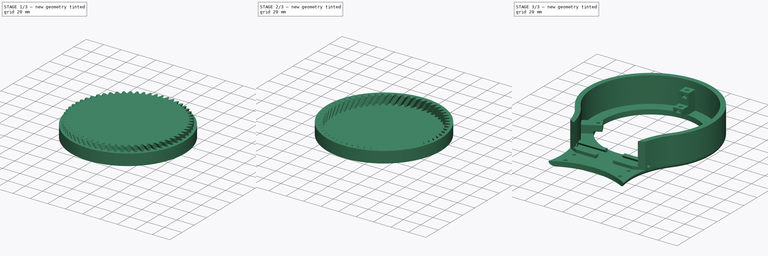
[diagram: build sequence overview — one tinted view per stage of 3, left to right]
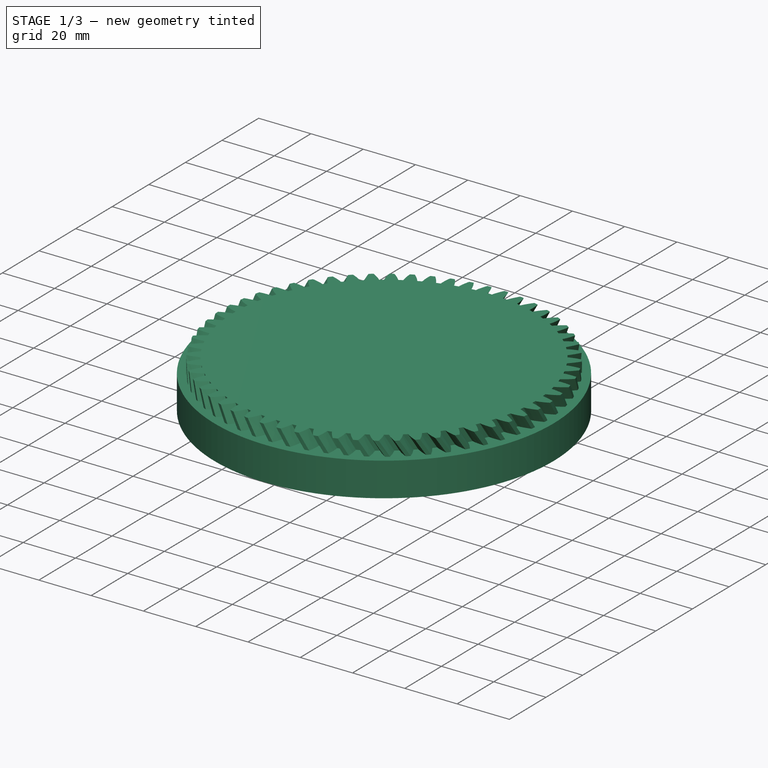
[diagram: stage 1 of 3 — iso view after this stage's code; geometry added in this stage tinted green]
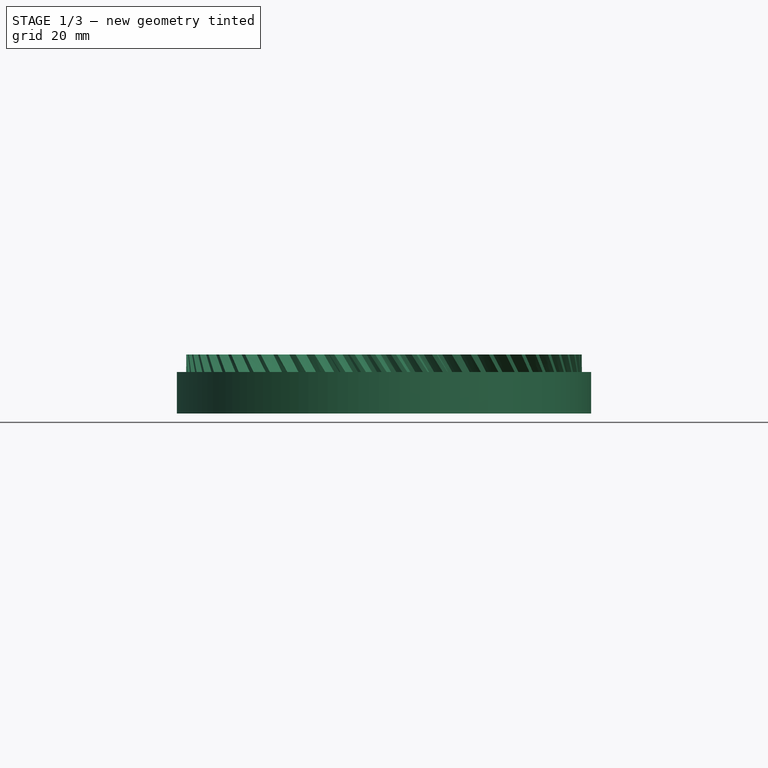
[diagram: stage 1 of 3 — front view after this stage's code; geometry added in this stage tinted green]
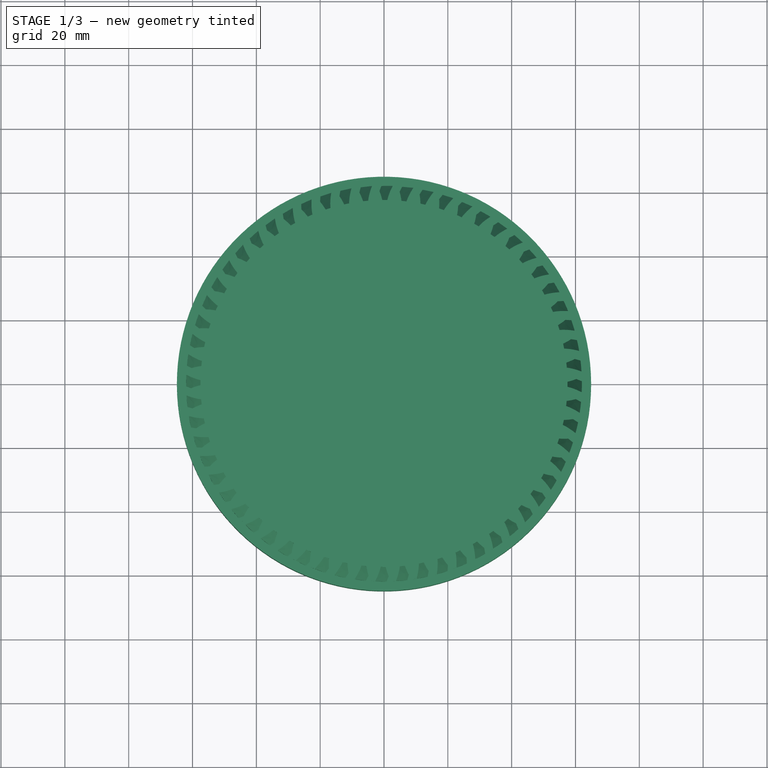
[diagram: stage 1 of 3 — top view after this stage's code; geometry added in this stage tinted green]
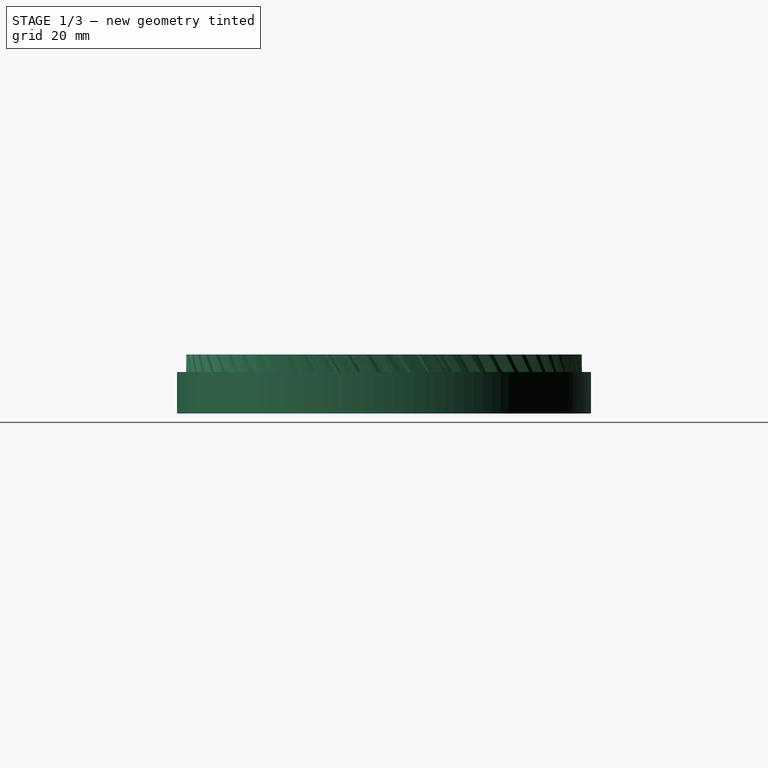
[diagram: stage 1 of 3 — right view after this stage's code; geometry added in this stage tinted green]
FCSTD DOCUMENT  (FreeCAD 0.19R24276 (Git))
Label: Art2BodyA_Splitted_B
License: All rights reserved
LicenseURL: http://en.wikipedia.org/wiki/All_rights_reserved
objects: Sketcher::SketchObject×24, PartDesign::Pocket×17, PartDesign::Pad×7, PartDesign::Plane×4, PartDesign::Body×2, Spreadsheet::Sheet×1, Part::FeaturePython×1, Part::Cylinder×1, Part::Cut×1, Part::MultiFuse×1, PartDesign::FeatureBase×1, PartDesign::Chamfer×1, PartDesign::Mirrored×1, PartDesign::Line×1, PartDesign::PolarPattern×1, PartDesign::Fillet×1
note: 90 computed .brp shape members not serialized (recipe doc carries the construction recipe); baked Part::Feature solids carry a one-line shape summary decoded from their .brp

FEATURE [Sketcher::SketchObject] Sketch001
  ExternalGeometry = -> [Pad]
  FullyConstrained = true
  MapMode = 5
  Placement = pos=(0,0,32) rot=(0,0,1;0rad)
  Support = -> [Pad]
  sketch-geometry (4):
    g0: ArcOfCircle CenterX=0 CenterY=0 CenterZ=0 NormalX=0 NormalY=0 NormalZ=1 AngleXU=0 Radius=60 StartAngle=2.47872 EndAngle=6.94606
    g1: ArcOfCircle CenterX=102.47 CenterY=80 CenterZ=0 NormalX=0 NormalY=0 NormalZ=1 AngleXU=0 Radius=70 StartAngle=2.47872 EndAngle=3.80447
    g2: ArcOfCircle CenterX=-102.47 CenterY=80 CenterZ=0 NormalX=0 NormalY=0 NormalZ=1 AngleXU=0 Radius=70 StartAngle=5.62031 EndAngle=6.94606
    g3: ArcOfCircle CenterX=2.7e-15 CenterY=160 CenterZ=0 NormalX=0 NormalY=0 NormalZ=1 AngleXU=0 Radius=60 StartAngle=5.62031 EndAngle=10.0877
  constraints (9):
    c: Coincident(g0,g-1)
    c: Coincident(g1,g-4)
    c: Coincident(g2,g-5)
    c: Coincident(g2,g0)
    c: Coincident(g3,g-3)
    c: Tangent(g3,g2) = 1.5708
    c: Radius(g3) = 60
    c: Tangent(g3,g1) = 1.5708
    c: Tangent(g1,g0) = 1.5708
FEATURE [PartDesign::Pocket] Pocket
  BaseFeature = -> Pad
  Length = 27
  Length2 = 100
  Profile = -> Sketch001
  Refine = true
  Type = 0
FEATURE [Part::FeaturePython] involutegear  # WARN: FeaturePython — macro-defined, semantics opaque (R4)
  Placement = pos=(0,0,3) rot=(0,0,1;0rad)
  backlash = 0
  beta = -32
  clearance = 0.25
  double_helix = false
  dw = 120
  head = 0
  height = 15.5
  module = 2
  numpoints = 6
  pressure_angle = 20
  properties_from_tool = false
  reversed_backlash = false
  shift = 0
  simple = false
  teeth = 60
  transverse_pitch = 6.28319
  undercut = false
  version = 0.0.3
FEATURE [Sketcher::SketchObject] Sketch003
  FullyConstrained = true
  MapMode = 5
  Placement = pos=(0,0,3) rot=(0,0,1;0rad)
  sketch-geometry (1):
    g0: Circle CenterX=0 CenterY=0 CenterZ=0 NormalX=0 NormalY=0 NormalZ=1 AngleXU=0 Radius=18
  constraints (2):
    c: Coincident(g0,g-1)
    c: Radius(g0) = 18
FEATURE [PartDesign::Plane] DatumPlane
  AttachmentOffset = pos=(0,0,9) rot=(0,0,1;0rad)
  Length = 273.743
  MapMode = 5
  Placement = pos=(9,-2e-15,2e-15) rot=(0.57735,0.57735,0.57735;2.0944rad)
  ResizeMode = 0
  Support = -> [YZ_Plane001]
  Width = 80.8687
FEATURE [Part::Cylinder] Cylinder
  Angle = 360
  AttacherType = Attacher::AttachEngine3D
  Height = 13
  Radius = 64.9
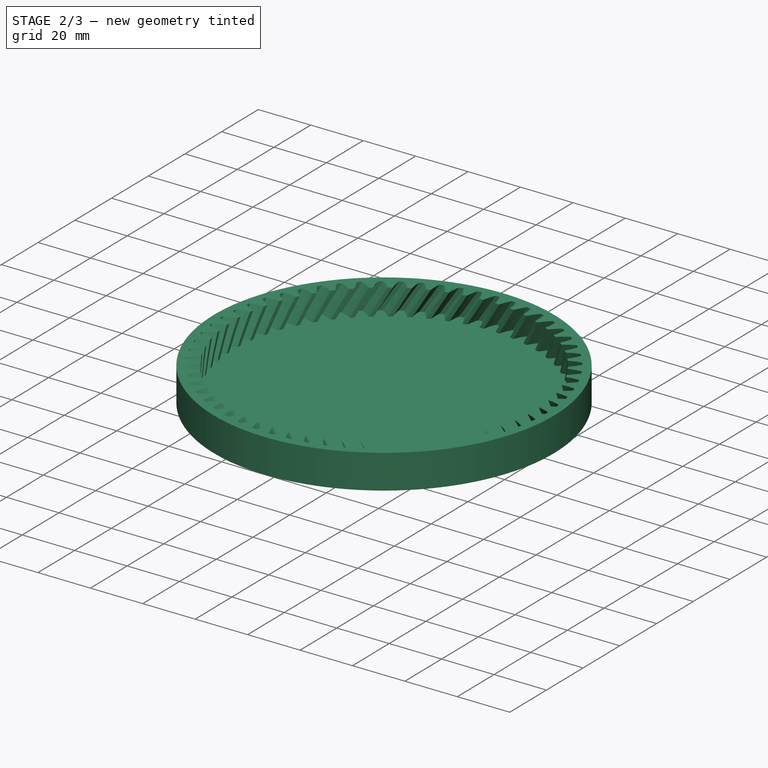
[diagram: stage 2 of 3 — iso view after this stage's code; geometry added in this stage tinted green]
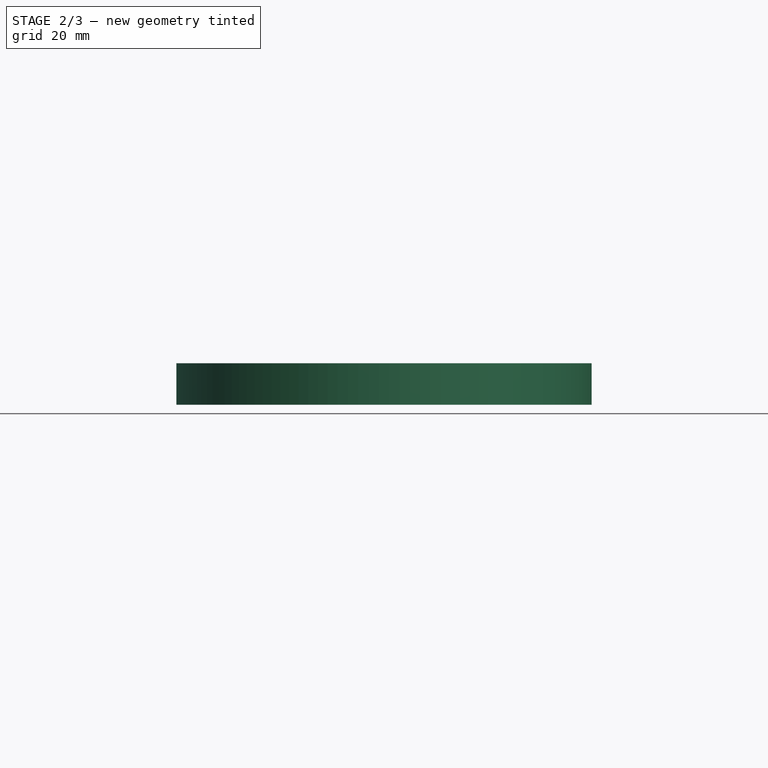
[diagram: stage 2 of 3 — front view after this stage's code; geometry added in this stage tinted green]
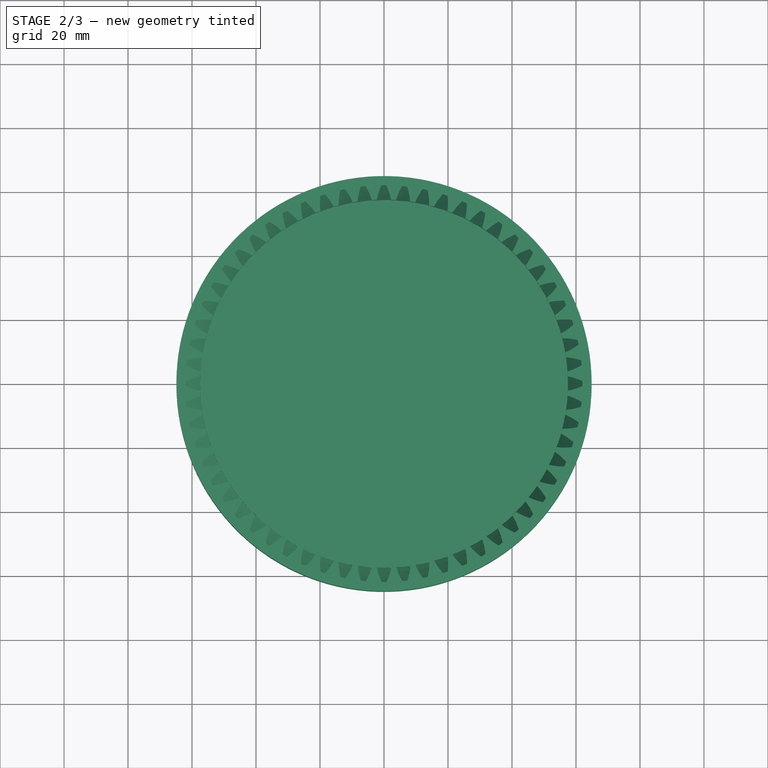
[diagram: stage 2 of 3 — top view after this stage's code; geometry added in this stage tinted green]
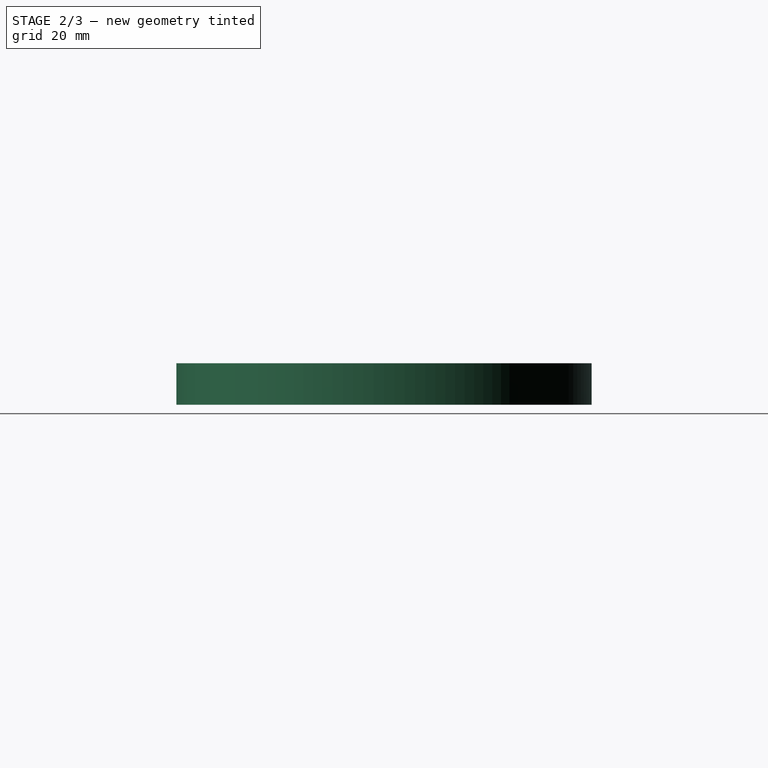
[diagram: stage 2 of 3 — right view after this stage's code; geometry added in this stage tinted green]
FEATURE [Sketcher::SketchObject] Sketch021
  FullyConstrained = true
  MapMode = 5
  Placement = pos=(0,0,32) rot=(0,0,1;0rad)
  Support = -> [Pocket]
  sketch-geometry (1):
    g0: Circle CenterX=0 CenterY=0 CenterZ=0 NormalX=0 NormalY=0 NormalZ=1 AngleXU=0 Radius=62.5
  constraints (2):
    c: Coincident(g0,g-1)
    c: Radius(g0) = 62.5
FEATURE [PartDesign::Pocket] Pocket014
  BaseFeature = -> Pocket
  Length = 29
  Length2 = 100
  Profile = -> Sketch021
  Refine = true
  Type = 0
FEATURE [PartDesign::Body] Body
  Group = -> [Sketch,Pad,Sketch001,Pocket,Sketch021,Pocket014]
  Origin = -> Origin
  Tip = -> Pocket014
FEATURE [PartDesign::Plane] DatumPlane003
  AttachmentOffset = pos=(0,0,-80) rot=(0,0,1;0rad)
  Length = 147.03
  MapMode = 5
  Placement = pos=(0,80,1.78e-14) rot=(1,0,0;1.5708rad)
  ResizeMode = 0
  Support = -> [XZ_Plane001]
  Width = 74.2047
FEATURE [Part::Cut] Cut
  Base = -> Cylinder
  Refine = true
  Tool = -> involutegear
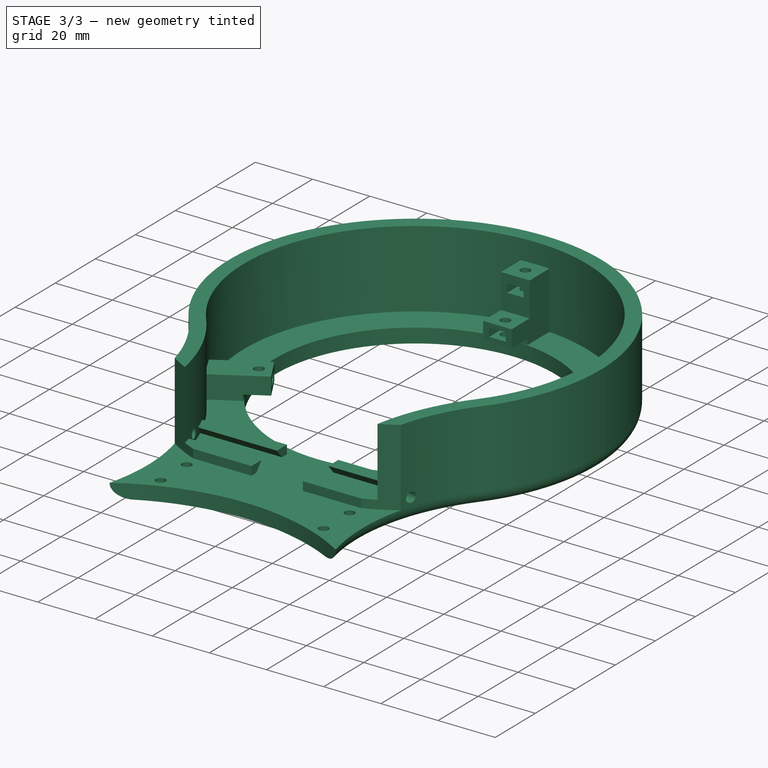
[diagram: stage 3 of 3 — iso view after this stage's code; geometry added in this stage tinted green]
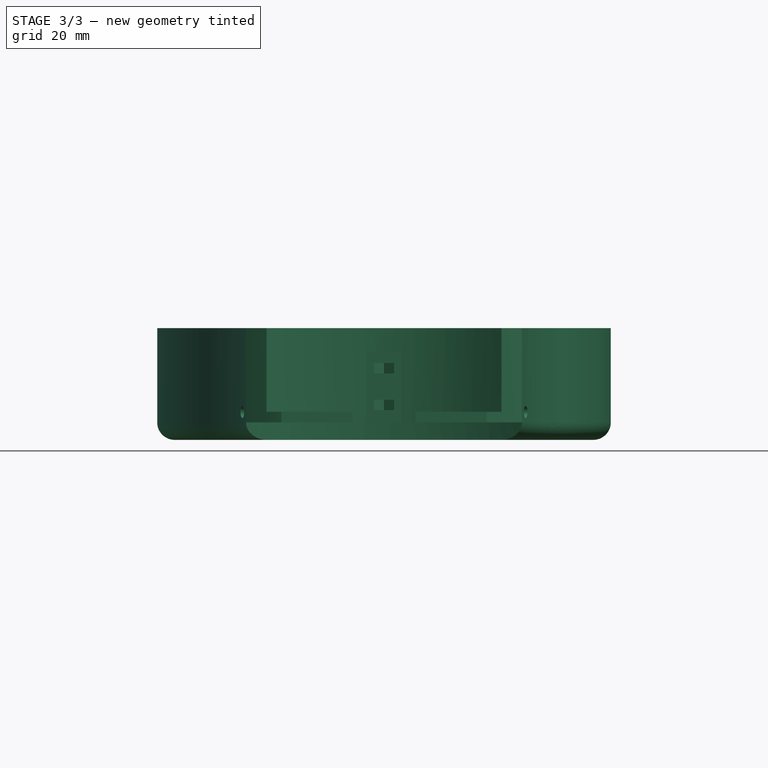
[diagram: stage 3 of 3 — front view after this stage's code; geometry added in this stage tinted green]
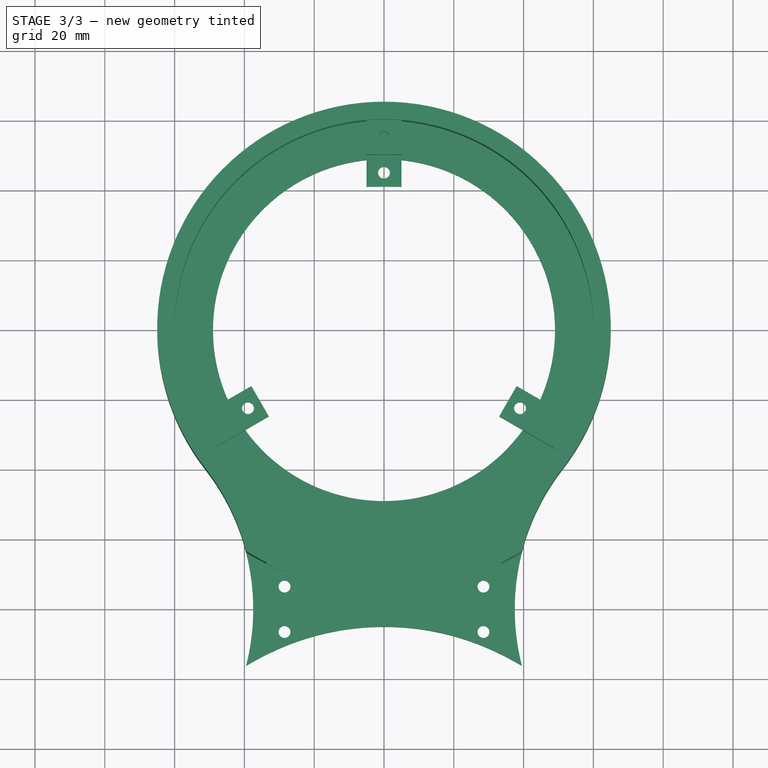
[diagram: stage 3 of 3 — top view after this stage's code; geometry added in this stage tinted green]
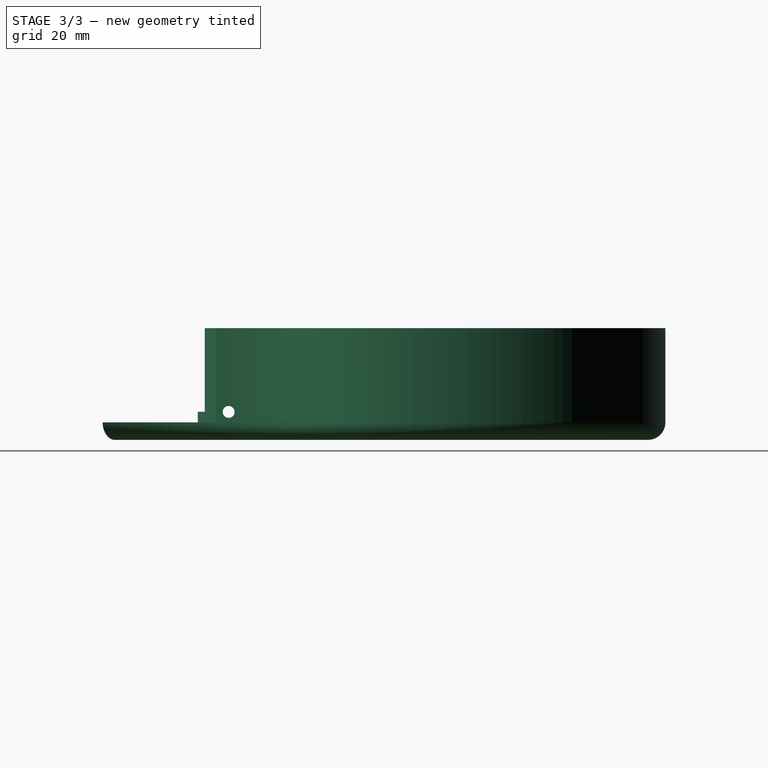
[diagram: stage 3 of 3 — right view after this stage's code; geometry added in this stage tinted green]
FEATURE [Spreadsheet::Sheet] Spreadsheet
  cells = A2=M3BoltBodyRadius; B2(M3BoltBodyRadius)=1.7; A3=M3BoltHeadRadius; B3(M3BoltHeadRadius)=2.95; A4=M3NutCircumradius; B4(M3NutCircumradius)=3.35; A5=M3NutThickness; B5(M3NutThickness)=3; A6=Bearing655ZZBodyRadius; B6(Bearing655ZZBodyRadius)=8.199999999999999; A7=MagnetRadius; B7(MagnetRadius)=4.2; A8=MagnetThickness; B8(MagnetThickness)=1.1
FEATURE [Sketcher::SketchObject] Sketch
  FullyConstrained = true
  MapMode = 5
  Support = -> [XY_Plane]
  sketch-geometry (4):
    g0: ArcOfCircle CenterX=0 CenterY=0 CenterZ=0 NormalX=0 NormalY=0 NormalZ=1 AngleXU=0 Radius=65 StartAngle=2.47872 EndAngle=6.94606
    g1: ArcOfCircle CenterX=102.47 CenterY=80 CenterZ=0 NormalX=0 NormalY=0 NormalZ=1 AngleXU=0 Radius=65 StartAngle=2.47872 EndAngle=3.80447
    g2: ArcOfCircle CenterX=-102.47 CenterY=80 CenterZ=0 NormalX=0 NormalY=0 NormalZ=1 AngleXU=0 Radius=65 StartAngle=5.62031 EndAngle=6.94606
    g3: ArcOfCircle CenterX=2.8e-15 CenterY=160 CenterZ=0 NormalX=0 NormalY=0 NormalZ=1 AngleXU=0 Radius=65 StartAngle=5.62031 EndAngle=10.0877
  constraints (10):
    c: Coincident(g0,g-1)
    c: Tangent(g2,g0) = 1.5708
    c: Tangent(g1,g0) = 1.5708
    c: Symmetric(g1,g2,g-2)
    c: Tangent(g3,g1) = 1.5708
    c: Tangent(g3,g2) = 1.5708
    c: Equal(g3,g0)
    c: DistanceY(g0,g3) = 160
    c: Radius(g0) = 65
    c: Equal(g2,g0)
FEATURE [PartDesign::Pad] Pad
  Direction = (1,1,1)
  Length = 32
  Length2 = 100
  Profile = -> Sketch
  Refine = true
  Type = 0
FEATURE [Part::MultiFuse] Fusion
  Refine = true
  Shapes = -> [Cut,Pocket014]
FEATURE [PartDesign::FeatureBase] BaseFeature  label="Fusion001"
  BaseFeature = -> Fusion
FEATURE [PartDesign::Pad] Pad002
  BaseFeature = -> BaseFeature
  Direction = (1,1,1)
  Length = 8
  Length2 = 100
  Profile = -> Sketch003
  Refine = true
  Type = 0
FEATURE [PartDesign::Chamfer] Chamfer
  Angle = 45
  Base = -> Pad002 [Edge755]
  BaseFeature = -> Pad002
  ChamferType = 0
  FlipDirection = false
  Refine = true
  Size = 6
  Size2 = 1
  SupportTransform = false
FEATURE [Sketcher::SketchObject] Sketch004
  FullyConstrained = true
  MapMode = 5
  Placement = pos=(0,0,11) rot=(0,0,1;0rad)
  Support = -> [Chamfer]
  expr: Constraints[5] = Spreadsheet.M3BoltBodyRadius
  sketch-geometry (3):
    g0: Circle CenterX=0 CenterY=0 CenterZ=0 NormalX=0 NormalY=0 NormalZ=1 AngleXU=0 Radius=5
    g1: Circle CenterX=11 CenterY=0 CenterZ=0 NormalX=0 NormalY=0 NormalZ=1 AngleXU=0 Radius=1.7
    g2: Circle CenterX=-11 CenterY=0 CenterZ=0 NormalX=0 NormalY=0 NormalZ=1 AngleXU=0 Radius=1.7
  constraints (7):
    c: Coincident(g0,g-1)
    c: PointOnObject(g1,g-1)
    c: Symmetric(g2,g1,g-2)
    c: DistanceX(g2,g1) = 22
    c: Radius(g0) = 5
    c: Radius(g2) = 1.7
    c: Equal(g1,g2)
FEATURE [PartDesign::Pocket] Pocket001
  BaseFeature = -> Chamfer
  Length = 5
  Length2 = 100
  Profile = -> Sketch004
  Refine = true
  Type = 1
FEATURE [Sketcher::SketchObject] Sketch005
  FullyConstrained = true
  MapMode = 5
  Placement = pos=(0,0,0) rot=(1,0,0;3.14159rad)
  Support = -> [Pocket001]
  expr: Constraints[1] = Spreadsheet.Bearing655ZZBodyRadius
  sketch-geometry (1):
    g0: Circle CenterX=0 CenterY=0 CenterZ=0 NormalX=0 NormalY=0 NormalZ=1 AngleXU=0 Radius=8.2
  constraints (2):
    c: Coincident(g0,g-1)
    c: Radius(g0) = 8.2
FEATURE [PartDesign::Pocket] Pocket002
  BaseFeature = -> Pocket001
  Length = 9
  Length2 = 100
  Profile = -> Sketch005
  Refine = true
  Type = 0
FEATURE [Sketcher::SketchObject] Sketch006
  FullyConstrained = true
  MapMode = 5
  Placement = pos=(0,0,0) rot=(1,0,0;3.14159rad)
  Support = -> [Pocket002]
  sketch-geometry (4):
    g0: LineSegment StartX=-15.3 StartY=3.5 StartZ=0 EndX=15.3 EndY=3.5 EndZ=0
    g1: LineSegment StartX=15.3 StartY=3.5 StartZ=0 EndX=15.3 EndY=-3.5 EndZ=0
    g2: LineSegment StartX=15.3 StartY=-3.5 StartZ=0 EndX=-15.3 EndY=-3.5 EndZ=0
    g3: LineSegment StartX=-15.3 StartY=-3.5 StartZ=0 EndX=-15.3 EndY=3.5 EndZ=0
  constraints (10):
    c: Coincident(g0,g1)
    c: Coincident(g1,g2)
    c: Coincident(g2,g3)
    c: Coincident(g3,g0)
    c: Horizontal(g0)
    c: Vertical(g3)
    c: Symmetric(g0,g1,g-1)
    c: Symmetric(g2,g1,g-2)
    c: DistanceX(g2,g2) = 30.6
    c: DistanceY(g3,g3) = 7
FEATURE [PartDesign::Pocket] Pocket003
  BaseFeature = -> Pocket002
  Length = 4
  Length2 = 100
  Profile = -> Sketch006
  Refine = true
  Type = 0
FEATURE [Sketcher::SketchObject] Sketch007
  ExternalGeometry = -> [Pocket003]
  FullyConstrained = true
  MapMode = 5
  Placement = pos=(0,0,11) rot=(0,0,1;0rad)
  Support = -> [Pocket003]
  expr: Constraints[39] = Spreadsheet.M3NutCircumradius
  sketch-geometry (14):
    g0: LineSegment StartX=11 StartY=3.35 StartZ=0 EndX=8.09881 EndY=1.675 EndZ=0
    g1: LineSegment StartX=8.09881 StartY=1.675 StartZ=0 EndX=8.09881 EndY=-1.675 EndZ=0
    g2: LineSegment StartX=8.09881 StartY=-1.675 StartZ=0 EndX=11 EndY=-3.35 EndZ=0
    g3: LineSegment StartX=11 StartY=-3.35 StartZ=0 EndX=13.9012 EndY=-1.675 EndZ=0
    g4: LineSegment StartX=13.9012 StartY=-1.675 StartZ=0 EndX=13.9012 EndY=1.675 EndZ=0
    g5: LineSegment StartX=13.9012 StartY=1.675 StartZ=0 EndX=11 EndY=3.35 EndZ=0
    g6: Circle CenterX=11 CenterY=0 CenterZ=0 NormalX=0 NormalY=0 NormalZ=1 AngleXU=0 Radius=3.35
    g7: LineSegment StartX=-11 StartY=3.35 StartZ=0 EndX=-13.9012 EndY=1.675 EndZ=0
    g8: LineSegment StartX=-13.9012 StartY=1.675 StartZ=0 EndX=-13.9012 EndY=-1.675 EndZ=0
    g9: LineSegment StartX=-13.9012 StartY=-1.675 StartZ=0 EndX=-11 EndY=-3.35 EndZ=0
    g10: LineSegment StartX=-11 StartY=-3.35 StartZ=0 EndX=-8.09881 EndY=-1.675 EndZ=0
    g11: LineSegment StartX=-8.09881 StartY=-1.675 StartZ=0 EndX=-8.09881 EndY=1.675 EndZ=0
    g12: LineSegment StartX=-8.09881 StartY=1.675 StartZ=0 EndX=-11 EndY=3.35 EndZ=0
    g13: Circle CenterX=-11 CenterY=0 CenterZ=0 NormalX=0 NormalY=0 NormalZ=1 AngleXU=0 Radius=3.35
  constraints (32):
    c: Coincident(g0,g1)
    c: Coincident(g1,g2)
    c: Coincident(g2,g3)
    c: Coincident(g3,g4)
    c: Coincident(g4,g5)
    c: Coincident(g5,g0)
    c: Equal(g0, g1-g5) x5
    c: PointOnObject(g0,g6)
    c: PointOnObject(g1,g6)
    c: PointOnObject(g2,g6)
    c: PointOnObject(g3,g6)
    c: PointOnObject(g4,g6)
    c: PointOnObject(g5,g6)
    c: Coincident(g6,g-3)
    c: Coincident(g7,g8)
    c: Coincident(g8,g9)
    c: Coincident(g9,g10)
    c: Coincident(g10,g11)
    c: Coincident(g11,g12)
    c: Coincident(g12,g7)
    c: Equal(g7, g8-g12) x5
    c: PointOnObject(g7,g13)
    c: PointOnObject(g8,g13)
    c: PointOnObject(g9,g13)
    c: PointOnObject(g10,g13)
    c: PointOnObject(g11,g13)
    c: PointOnObject(g12,g13)
    c: Coincident(g13,g-4)
    c: Vertical(g11)
    c: Vertical(g1)
    c: Equal(g6,g13)
    c: Radius(g6) = 3.35
FEATURE [PartDesign::Pocket] Pocket004
  BaseFeature = -> Pocket003
  Length = 4
  Length2 = 100
  Profile = -> Sketch007
  Refine = true
  Type = 0
FEATURE [Sketcher::SketchObject] Sketch008
  ExternalGeometry = -> [Pocket004]
  FullyConstrained = true
  MapMode = 5
  Placement = pos=(0,0,0) rot=(1,0,0;3.14159rad)
  Support = -> [Pocket004]
  sketch-geometry (1):
    g0: Circle CenterX=0 CenterY=-160 CenterZ=0 NormalX=0 NormalY=0 NormalZ=1 AngleXU=0 Radius=49
  constraints (2):
    c: Radius(g0) = 49
    c: Coincident(g0,g-3)
FEATURE [PartDesign::Pocket] Pocket005
  BaseFeature = -> Pocket004
  Length = 5
  Length2 = 100
  Profile = -> Sketch008
  Refine = true
  Type = 0
FEATURE [Sketcher::SketchObject] Sketch009
  ExternalGeometry = -> [Pocket005]
  FullyConstrained = true
  MapMode = 5
  Placement = pos=(0,0,5) rot=(0,0,1;0rad)
  Support = -> [Pocket005]
  sketch-geometry (4):
    g0: ArcOfCircle CenterX=0 CenterY=0 CenterZ=0 NormalX=0 NormalY=0 NormalZ=1 AngleXU=0 Radius=75 StartAngle=1.10499 EndAngle=2.0366
    g1: ArcOfCircle CenterX=2.7e-15 CenterY=160 CenterZ=0 NormalX=0 NormalY=0 NormalZ=1 AngleXU=0 Radius=75 StartAngle=4.24659 EndAngle=5.17819
    g2: ArcOfCircle CenterX=102.47 CenterY=80 CenterZ=0 NormalX=0 NormalY=0 NormalZ=1 AngleXU=0 Radius=70 StartAngle=2.95493 EndAngle=3.32825
    g3: ArcOfCircle CenterX=-102.47 CenterY=80 CenterZ=0 NormalX=0 NormalY=0 NormalZ=1 AngleXU=0 Radius=70 StartAngle=6.09653 EndAngle=6.46984
  constraints (12):
    c: Coincident(g0,g-1)
    c: Radius(g0) = 75
    c: Coincident(g2,g1)
    c: Coincident(g2,g0)
    c: Coincident(g3,g1)
    c: Coincident(g3,g0)
    c: Equal(g1,g0)
    c: Coincident(g1,g-3)
    c: Equal(g3,g2)
    c: Coincident(g2,g-4)
    c: Coincident(g3,g-5)
    c: Equal(g3,g-5)
FEATURE [PartDesign::Pad] Pad003
  BaseFeature = -> Pocket005
  Direction = (1,1,1)
  Length = 5
  Length2 = 100
  Profile = -> Sketch009
  Refine = true
  Type = 0
FEATURE [Sketcher::SketchObject] Sketch010
  ExternalGeometry = -> [Pad003]
  FullyConstrained = true
  MapMode = 5
  Placement = pos=(9,-2e-15,2e-15) rot=(0.57735,0.57735,0.57735;2.0944rad)
  Support = -> [DatumPlane]
  sketch-geometry (8):
    g0: LineSegment StartX=91 StartY=8.03897 StartZ=0 EndX=96 EndY=8.03897 EndZ=0
    g1: LineSegment StartX=96 StartY=8.03897 StartZ=0 EndX=93.45 EndY=5 EndZ=0
    g2: LineSegment StartX=93.45 StartY=5 StartZ=0 EndX=91 EndY=5 EndZ=0
    g3: LineSegment StartX=91 StartY=5 StartZ=0 EndX=91 EndY=8.03897 EndZ=0
    g4: LineSegment StartX=103.7 StartY=8.03897 StartZ=0 EndX=108.7 EndY=8.03897 EndZ=0
    g5: LineSegment StartX=108.7 StartY=8.03897 StartZ=0 EndX=108.7 EndY=5 EndZ=0
    g6: LineSegment StartX=108.7 StartY=5 StartZ=0 EndX=106.25 EndY=5 EndZ=0
    g7: LineSegment StartX=106.25 StartY=5 StartZ=0 EndX=103.7 EndY=8.03897 EndZ=0
  constraints (24):
    c: Horizontal(g0)
    c: Coincident(g0,g1)
    c: PointOnObject(g1,g-3)
    c: Coincident(g1,g2)
    c: Horizontal(g2)
    c: Coincident(g2,g3)
    c: Vertical(g3)
    c: Coincident(g0,g3)
    c: Horizontal(g4)
    c: Coincident(g4,g5)
    c: Vertical(g5)
    c: Coincident(g5,g6)
    c: Horizontal(g6)
    c: Coincident(g6,g7)
    c: Coincident(g7,g4)
    c: Equal(g1,g7)
    c: Equal(g5,g3)
    c: Equal(g4,g0)
    c: PointOnObject(g6,g-3)
    c: DistanceX(g1,g6) = 12.8
    c: DistanceX(g0,g4) = 7.7
    c: Angle(g-3,g1) = 0.872665
    c: DistanceX(g0,g0) = 5
    c: DistanceX(g-1,g2) = 91
FEATURE [PartDesign::Pad] Pad004
  BaseFeature = -> Pad003
  Direction = (1,1,1)
  Length = 10
  Length2 = 100
  Profile = -> Sketch010
  Refine = true
  Type = 3
  UpToFace = -> Pad003 [Face265]
FEATURE [PartDesign::Mirrored] Mirrored
  BaseFeature = -> Pad004
  MirrorPlane = -> YZ_Plane001
  Originals = -> [Pad004]
  Refine = true
FEATURE [Sketcher::SketchObject] Sketch011
  ExternalGeometry = -> [Mirrored]
  FullyConstrained = true
  MapMode = 5
  Placement = pos=(0,0,0) rot=(0.57735,0.57735,0.57735;2.0944rad)
  Support = -> [YZ_Plane001]
  sketch-geometry (6):
    g0: LineSegment StartX=221 StartY=5 StartZ=0 EndX=221 EndY=13 EndZ=0
    g1: LineSegment StartX=221 StartY=13 StartZ=0 EndX=201 EndY=13 EndZ=0
    g2: LineSegment StartX=201 StartY=13 StartZ=0 EndX=201 EndY=7 EndZ=0
    g3: LineSegment StartX=201 StartY=7 StartZ=0 EndX=209 EndY=7 EndZ=0
    g4: LineSegment StartX=209 StartY=7 StartZ=0 EndX=209 EndY=5 EndZ=0
    g5: LineSegment StartX=209 StartY=5 StartZ=0 EndX=221 EndY=5 EndZ=0
  constraints (17):
    c: Vertical(g0)
    c: Coincident(g0,g1)
    c: Coincident(g1,g2)
    c: Coincident(g2,g3)
    c: Coincident(g3,g4)
    c: Coincident(g4,g5)
    c: Coincident(g5,g0)
    c: Horizontal(g5)
    c: Vertical(g4)
    c: Vertical(g2)
    c: Horizontal(g3)
    c: Horizontal(g1)
    c: DistanceX(g3,g3) = 8
    c: DistanceX(g1,g1) = 20
    c: DistanceY(g2,g2) = 6
    c: DistanceY(g4,g4) = 2
    c: Coincident(g4,g-3)
FEATURE [PartDesign::Pad] Pad005
  BaseFeature = -> Mirrored
  Direction = (1,1,1)
  Length = 10
  Length2 = 100
  Midplane = true
  Profile = -> Sketch011
  Refine = true
  Type = 0
FEATURE [Sketcher::SketchObject] Sketch012
  ExternalGeometry = -> [Pad005]
  FullyConstrained = false
  MapMode = 5
  Placement = pos=(-3.6e-15,2.9e-15,13) rot=(0,0,1;0rad)
  Support = -> [Pad005]
  expr: Constraints[1] = Spreadsheet.M3BoltBodyRadius
  sketch-geometry (1):
    g0: Circle CenterX=0 CenterY=205 CenterZ=0 NormalX=0 NormalY=0 NormalZ=1 AngleXU=0 Radius=1.7
  constraints (2):
    c: PointOnObject(g0,g-2)
    c: Radius(g0) = 1.7
FEATURE [PartDesign::Pocket] Pocket006
  BaseFeature = -> Pad005
  Length = 5
  Length2 = 100
  Profile = -> Sketch012
  Refine = true
  Type = 1
FEATURE [PartDesign::Plane] DatumPlane001
  AttachmentOffset = pos=(0,0,-3) rot=(0,0,1;0rad)
  Length = 165.847
  MapMode = 5
  Placement = pos=(-2.8e-15,2.2e-15,10) rot=(0,0,1;0rad)
  ResizeMode = 0
  Support = -> [Pocket006]
  Width = 285.897
FEATURE [Sketcher::SketchObject] Sketch013
  ExternalGeometry = -> [Pocket006]
  FullyConstrained = true
  MapMode = 5
  Placement = pos=(-2.8e-15,2.2e-15,10) rot=(0,0,1;0rad)
  Support = -> [DatumPlane001]
  expr: Constraints[18] = Spreadsheet.M3NutCircumradius
  sketch-geometry (10):
    g0: LineSegment StartX=0 StartY=208.35 StartZ=0 EndX=-2.90119 EndY=206.675 EndZ=0
    g1: LineSegment StartX=-2.90119 StartY=206.675 StartZ=0 EndX=-2.90119 EndY=203.325 EndZ=0
    g2: LineSegment StartX=-2.90119 StartY=203.325 StartZ=0 EndX=-9.28e-14 EndY=201.65 EndZ=0
    g3: LineSegment StartX=-9.28e-14 StartY=201.65 StartZ=0 EndX=2.90119 EndY=203.325 EndZ=0
    g4: LineSegment StartX=2.90119 StartY=203.325 StartZ=0 EndX=2.90119 EndY=206.675 EndZ=0
    g5: LineSegment StartX=2.90119 StartY=206.675 StartZ=0 EndX=0 EndY=208.35 EndZ=0
    g6: Circle CenterX=0 CenterY=205 CenterZ=0 NormalX=0 NormalY=0 NormalZ=1 AngleXU=0 Radius=3.35
    g7: LineSegment StartX=-2.90119 StartY=206.675 StartZ=0 EndX=-2.90119 EndY=196.675 EndZ=0
    g8: LineSegment StartX=-2.90119 StartY=196.675 StartZ=0 EndX=2.90119 EndY=196.675 EndZ=0
    g9: LineSegment StartX=2.90119 StartY=196.675 StartZ=0 EndX=2.90119 EndY=206.675 EndZ=0
  constraints (24):
    c: Coincident(g0,g1)
    c: Coincident(g1,g2)
    c: Coincident(g2,g3)
    c: Coincident(g3,g4)
    c: Coincident(g4,g5)
    c: Coincident(g5,g0)
    c: Equal(g0, g1-g5) x5
    c: PointOnObject(g0,g6)
    c: PointOnObject(g1,g6)
    c: PointOnObject(g2,g6)
    c: PointOnObject(g3,g6)
    c: PointOnObject(g4,g6)
    c: PointOnObject(g5,g6)
    c: PointOnObject(g5,g-2)
    c: Radius(g6) = 3.35
    c: Coincident(g0,g7)
    c: Vertical(g7)
    c: Coincident(g7,g8)
    c: Horizontal(g8)
    c: Coincident(g8,g9)
    c: Coincident(g9,g5)
    c: Vertical(g9)
    c: DistanceY(g9,g9) = 10
    c: Coincident(g6,g-3)
FEATURE [PartDesign::Pocket] Pocket007
  BaseFeature = -> Pocket006
  Length = 3
  Length2 = 100
  Midplane = true
  Profile = -> Sketch013
  Refine = true
  Type = 0
  expr: Length = Spreadsheet.M3NutThickness
FEATURE [PartDesign::Line] DatumLine
  AttacherType = Attacher::AttachEngineLine
  Length = 20
  MapMode = 19
  Placement = pos=(-7.1e-15,160,0) rot=(-1,0,0;3.14159rad)
  ResizeMode = 0
  Support = -> [Pocket007]
FEATURE [PartDesign::PolarPattern] PolarPattern
  Angle = 360
  Axis = -> DatumLine
  BaseFeature = -> Pocket007
  Occurrences = 3
  Originals = -> [Pad005,Pocket006,Pocket007]
  Refine = true
FEATURE [Sketcher::SketchObject] Sketch014
  ExternalGeometry = -> [PolarPattern]
  FullyConstrained = true
  MapMode = 5
  Placement = pos=(-3.6e-15,2.9e-15,13) rot=(0,0,1;0rad)
  Support = -> [PolarPattern]
  sketch-geometry (4):
    g0: LineSegment StartX=-5 StartY=219.791 StartZ=0 EndX=-5 EndY=210 EndZ=0
    g1: LineSegment StartX=-5 StartY=210 StartZ=0 EndX=5 EndY=210 EndZ=0
    g2: LineSegment StartX=5 StartY=210 StartZ=0 EndX=5 EndY=219.791 EndZ=0
    g3: ArcOfCircle CenterX=1.16e-14 CenterY=160 CenterZ=0 NormalX=0 NormalY=0 NormalZ=1 AngleXU=0 Radius=60 StartAngle=1.48737 EndAngle=1.65423
  constraints (11):
    c: Vertical(g0)
    c: Coincident(g0,g1)
    c: Coincident(g1,g2)
    c: Vertical(g2)
    c: Symmetric(g1,g0,g-2)
    c: Coincident(g3,g0)
    c: Coincident(g3,g2)
    c: DistanceY(g-4,g1) = 9
    c: Coincident(g3,g-3)
    c: Equal(g-3,g3)
    c: DistanceX(g1,g1) = 10
FEATURE [PartDesign::Pad] Pad006
  BaseFeature = -> PolarPattern
  Direction = (1,1,1)
  Length = 12
  Length2 = 100
  Profile = -> Sketch014
  Refine = true
  Type = 0
FEATURE [Sketcher::SketchObject] Sketch015
  ExternalGeometry = -> [Pad006]
  FullyConstrained = true
  MapMode = 5
  Placement = pos=(-7.3e-15,6.8e-15,25) rot=(0,0,1;0rad)
  Support = -> [Pad006]
  expr: Constraints[1] = Spreadsheet.M3BoltBodyRadius
  sketch-geometry (1):
    g0: Circle CenterX=0 CenterY=215 CenterZ=0 NormalX=0 NormalY=0 NormalZ=1 AngleXU=0 Radius=1.7
  constraints (3):
    c: DistanceY(g-3,g0) = 5
    c: Radius(g0) = 1.7
    c: PointOnObject(g0,g-2)
FEATURE [PartDesign::Pocket] Pocket008
  BaseFeature = -> Pad006
  Length = 12
  Length2 = 100
  Profile = -> Sketch015
  Refine = true
  Type = 0
FEATURE [PartDesign::Plane] DatumPlane002
  AttachmentOffset = pos=(0,0,-4.5) rot=(0,0,1;0rad)
  Length = 165.847
  MapMode = 5
  Placement = pos=(-5.9e-15,5.5e-15,20.5) rot=(0,0,1;0rad)
  ResizeMode = 0
  Support = -> [Pocket008]
  Width = 285.897
FEATURE [Sketcher::SketchObject] Sketch016
  ExternalGeometry = -> [Pocket008]
  FullyConstrained = true
  MapMode = 5
  Placement = pos=(-5.9e-15,5.5e-15,20.5) rot=(0,0,1;0rad)
  Support = -> [DatumPlane002]
  expr: Constraints[18] = Spreadsheet.M3NutCircumradius
  sketch-geometry (10):
    g0: LineSegment StartX=0 StartY=211.65 StartZ=0 EndX=2.90119 EndY=213.325 EndZ=0
    g1: LineSegment StartX=2.90119 StartY=213.325 StartZ=0 EndX=2.90119 EndY=216.675 EndZ=0
    g2: LineSegment StartX=2.90119 StartY=216.675 StartZ=0 EndX=6.2e-15 EndY=218.35 EndZ=0
    g3: LineSegment StartX=6.2e-15 StartY=218.35 StartZ=0 EndX=-2.90119 EndY=216.675 EndZ=0
    g4: LineSegment StartX=-2.90119 StartY=216.675 StartZ=0 EndX=-2.90119 EndY=213.325 EndZ=0
    g5: LineSegment StartX=-2.90119 StartY=213.325 StartZ=0 EndX=0 EndY=211.65 EndZ=0
    g6: Circle CenterX=0 CenterY=215 CenterZ=0 NormalX=0 NormalY=0 NormalZ=1 AngleXU=0 Radius=3.35
    g7: LineSegment StartX=2.90119 StartY=216.675 StartZ=0 EndX=2.90119 EndY=206.675 EndZ=0
    g8: LineSegment StartX=2.90119 StartY=206.675 StartZ=0 EndX=-2.90119 EndY=206.675 EndZ=0
    g9: LineSegment StartX=-2.90119 StartY=206.675 StartZ=0 EndX=-2.90119 EndY=216.675 EndZ=0
  constraints (24):
    c: Coincident(g0,g1)
    c: Coincident(g1,g2)
    c: Coincident(g2,g3)
    c: Coincident(g3,g4)
    c: Coincident(g4,g5)
    c: Coincident(g5,g0)
    c: Equal(g0, g1-g5) x5
    c: PointOnObject(g0,g6)
    c: PointOnObject(g1,g6)
    c: PointOnObject(g2,g6)
    c: PointOnObject(g3,g6)
    c: PointOnObject(g4,g6)
    c: PointOnObject(g5,g6)
    c: PointOnObject(g5,g-2)
    c: Radius(g6) = 3.35
    c: Vertical(g7)
    c: Coincident(g7,g8)
    c: Coincident(g8,g9)
    c: Vertical(g9)
    c: Horizontal(g8)
    c: Coincident(g7,g1)
    c: Coincident(g9,g3)
    c: Coincident(g6,g-3)
    c: DistanceY(g7,g7) = 10
FEATURE [PartDesign::Pocket] Pocket009
  BaseFeature = -> Pocket008
  Length = 3
  Length2 = 100
  Midplane = true
  Profile = -> Sketch016
  Refine = true
  Type = 0
  expr: Length = Spreadsheet.M3NutThickness
FEATURE [Sketcher::SketchObject] Sketch017
  ExternalGeometry = -> [Pocket009]
  FullyConstrained = true
  MapMode = 5
  Placement = pos=(0,0,0) rot=(0.57735,0.57735,0.57735;2.0944rad)
  Support = -> [YZ_Plane001]
  expr: Constraints[0] = Spreadsheet.M3BoltBodyRadius
  sketch-geometry (3):
    g0: Circle CenterX=99.85 CenterY=8 CenterZ=0 NormalX=0 NormalY=0 NormalZ=1 AngleXU=0 Radius=1.7
    g1: LineSegment StartX=93.45 StartY=5 StartZ=0 EndX=99.85 EndY=8 EndZ=0
    g2: LineSegment StartX=99.85 StartY=8 StartZ=0 EndX=106.25 EndY=5 EndZ=0
  constraints (7):
    c: Radius(g0) = 1.7
    c: Coincident(g1,g-3)
    c: Coincident(g1,g0)
    c: Coincident(g2,g-4)
    c: Coincident(g0,g2)
    c: Equal(g2,g1)
    c: DistanceY(g1,g0) = 3
FEATURE [PartDesign::Pocket] Pocket010
  BaseFeature = -> Pocket009
  Length = 5
  Length2 = 100
  Midplane = true
  Profile = -> Sketch017
  Refine = true
  Type = 1
FEATURE [Sketcher::SketchObject] Sketch018
  FullyConstrained = true
  MapMode = 5
  Placement = pos=(0,0,0) rot=(1,0,0;3.14159rad)
  Support = -> [Pocket010]
  expr: Constraints[14] = Spreadsheet.M3BoltBodyRadius
  sketch-geometry (8):
    g0: Circle CenterX=-28.5 CenterY=-73.5 CenterZ=0 NormalX=0 NormalY=0 NormalZ=1 AngleXU=0 Radius=1.7
    g1: LineSegment StartX=-28.5 StartY=-73.5 StartZ=0 EndX=28.5 EndY=-73.5 EndZ=0
    g2: LineSegment StartX=28.5 StartY=-73.5 StartZ=0 EndX=28.5 EndY=-86.5 EndZ=0
    g3: LineSegment StartX=28.5 StartY=-86.5 StartZ=0 EndX=-28.5 EndY=-86.5 EndZ=0
    g4: LineSegment StartX=-28.5 StartY=-86.5 StartZ=0 EndX=-28.5 EndY=-73.5 EndZ=0
    g5: Circle CenterX=28.5 CenterY=-73.5 CenterZ=0 NormalX=0 NormalY=0 NormalZ=1 AngleXU=0 Radius=1.7
    g6: Circle CenterX=28.5 CenterY=-86.5 CenterZ=0 NormalX=0 NormalY=0 NormalZ=1 AngleXU=0 Radius=1.7
    g7: Circle CenterX=-28.5 CenterY=-86.5 CenterZ=0 NormalX=0 NormalY=0 NormalZ=1 AngleXU=0 Radius=1.7
  constraints (19):
    c: Coincident(g1,g2)
    c: Coincident(g2,g3)
    c: Coincident(g3,g4)
    c: Coincident(g4,g1)
    c: Horizontal(g1)
    c: Vertical(g2)
    c: Vertical(g4)
    c: Coincident(g1,g0)
    c: Coincident(g5,g1)
    c: Coincident(g6,g2)
    c: Coincident(g7,g3)
    c: Equal(g7,g0)
    c: Equal(g0,g5)
    c: Equal(g5,g6)
    c: Radius(g6) = 1.7
    c: Symmetric(g7,g6,g-2)
    c: DistanceY(g4,g4) = 13
    c: DistanceY(g0,g-1) = 73.5
    c: DistanceX(g3,g3) = 57
FEATURE [PartDesign::Pocket] Pocket011
  BaseFeature = -> Pocket010
  Length = 5
  Length2 = 100
  Profile = -> Sketch018
  Refine = true
  Type = 1
FEATURE [Sketcher::SketchObject] Sketch019
  ExternalGeometry = -> [Pocket011]
  FullyConstrained = true
  MapMode = 5
  Placement = pos=(0,0,0) rot=(1,0,0;3.14159rad)
  Support = -> [Pocket011]
  expr: Constraints[1] = Spreadsheet.M3BoltHeadRadius
  sketch-geometry (4):
    g0: Circle CenterX=-28.5 CenterY=-73.5 CenterZ=0 NormalX=0 NormalY=0 NormalZ=1 AngleXU=0 Radius=2.95
    g1: Circle CenterX=-28.5 CenterY=-86.5 CenterZ=0 NormalX=0 NormalY=0 NormalZ=1 AngleXU=0 Radius=2.95
    g2: Circle CenterX=28.5 CenterY=-73.5 CenterZ=0 NormalX=0 NormalY=0 NormalZ=1 AngleXU=0 Radius=2.95
    g3: Circle CenterX=28.5 CenterY=-86.5 CenterZ=0 NormalX=0 NormalY=0 NormalZ=1 AngleXU=0 Radius=2.95
  constraints (8):
    c: Coincident(g0,g-3)
    c: Radius(g0) = 2.95
    c: Equal(g1,g0)
    c: Coincident(g1,g-4)
    c: Coincident(g2,g-5)
    c: Coincident(g3,g-6)
    c: Equal(g3,g2)
    c: Equal(g2,g0)
FEATURE [PartDesign::Pocket] Pocket012
  BaseFeature = -> Pocket011
  Length = 2.9
  Length2 = 100
  Profile = -> Sketch019
  Refine = true
  Type = 0
FEATURE [PartDesign::Fillet] Fillet
  Base = -> Pocket012 [Edge845,Edge848]
  BaseFeature = -> Pocket012
  Radius = 5
  Refine = true
  SupportTransform = false
FEATURE [Sketcher::SketchObject] Sketch020
  FullyConstrained = true
  MapMode = 5
  Placement = pos=(0,0,0) rot=(1,0,0;3.14159rad)
  Support = -> [Fillet]
  expr: Constraints[8] = Spreadsheet.MagnetRadius
  sketch-geometry (3):
    g0: Circle CenterX=0 CenterY=54.5 CenterZ=0 NormalX=0 NormalY=0 NormalZ=1 AngleXU=0 Radius=4.2
    g1: Circle CenterX=0 CenterY=-80 CenterZ=0 NormalX=0 NormalY=0 NormalZ=1 AngleXU=0 Radius=4.2
    g2: Circle CenterX=0 CenterY=-214.5 CenterZ=0 NormalX=0 NormalY=0 NormalZ=1 AngleXU=0 Radius=4.2
  constraints (9):
    c: PointOnObject(g0,g-2)
    c: PointOnObject(g1,g-2)
    c: PointOnObject(g2,g-2)
    c: DistanceY(g-1,g0) = 54.5
    c: DistanceY(g1,g-1) = 80
    c: DistanceY(g2,g1) = 134.5
    c: Equal(g2,g1)
    c: Equal(g1,g0)
    c: Radius(g2) = 4.2
FEATURE [PartDesign::Pocket] Pocket013
  BaseFeature = -> Fillet
  Length = 1.1
  Length2 = 100
  Profile = -> Sketch020
  Refine = true
  Type = 0
  expr: Length = Spreadsheet.MagnetThickness
FEATURE [Sketcher::SketchObject] Sketch022
  ExternalGeometry = -> [Pocket013]
  FullyConstrained = true
  MapMode = 5
  Placement = pos=(0,80,1.78e-14) rot=(1,0,0;1.5708rad)
  Support = -> [DatumPlane003]
  sketch-geometry (6):
    g0: LineSegment StartX=-25 StartY=27 StartZ=0 EndX=-35 EndY=27 EndZ=0
    g1: LineSegment StartX=-35 StartY=27 StartZ=0 EndX=-35 EndY=17 EndZ=0
    g2: LineSegment StartX=-35 StartY=17 StartZ=0 EndX=-25 EndY=27 EndZ=0
    g3: LineSegment StartX=25 StartY=27 StartZ=0 EndX=35 EndY=27 EndZ=0
    g4: LineSegment StartX=35 StartY=27 StartZ=0 EndX=35 EndY=17 EndZ=0
    g5: LineSegment StartX=35 StartY=17 StartZ=0 EndX=25 EndY=27 EndZ=0
  constraints (15):
    c: Horizontal(g0)
    c: Coincident(g0,g1)
    c: Vertical(g1)
    c: Coincident(g1,g2)
    c: Coincident(g2,g0)
    c: Coincident(g3,g4)
    c: Coincident(g4,g5)
    c: Coincident(g5,g3)
    c: Symmetric(g3,g0,g-2)
    c: Symmetric(g0,g3,g-2)
    c: Symmetric(g4,g1,g-2)
    c: DistanceX(g0,g3) = 50
    c: DistanceX(g0,g0) = 10
    c: Angle(g0,g2) = 0.785398
    c: DistanceY(g0,g-3) = 5
FEATURE [PartDesign::Pad] Pad007
  BaseFeature = -> Pocket013
  Direction = (1,1,1)
  Length = 6
  Length2 = 100
  Midplane = true
  Profile = -> Sketch022
  Refine = true
  Type = 0
FEATURE [Sketcher::SketchObject] Sketch023
  ExternalGeometry = -> [Pad007]
  FullyConstrained = true
  MapMode = 5
  Placement = pos=(0,0,0) rot=(1,0,0;3.14159rad)
  Support = -> [Pad007]
  sketch-geometry (1):
    g0: Circle CenterX=0 CenterY=0 CenterZ=0 NormalX=0 NormalY=0 NormalZ=1 AngleXU=0 Radius=75
  constraints (2):
    c: Coincident(g0,g-1)
    c: Radius(g0) = 75
FEATURE [PartDesign::Pocket] Pocket015
  BaseFeature = -> Pad007
  Length = 5
  Length2 = 100
  Profile = -> Sketch023
  Refine = true
  Type = 1
FEATURE [Sketcher::SketchObject] Sketch024
  ExternalGeometry = -> [Pocket015]
  FullyConstrained = true
  MapMode = 5
  Placement = pos=(0,0,32) rot=(0,0,1;0rad)
  Support = -> [Pocket015]
  sketch-geometry (4):
    g0: ArcOfCircle CenterX=2.7e-15 CenterY=160 CenterZ=0 NormalX=0 NormalY=0 NormalZ=1 AngleXU=0 Radius=75 StartAngle=3.98266 EndAngle=5.44212
    g1: ArcOfCircle CenterX=0 CenterY=0 CenterZ=0 NormalX=0 NormalY=0 NormalZ=1 AngleXU=0 Radius=75 StartAngle=0.841069 EndAngle=2.30052
    g2: LineSegment StartX=-50 StartY=104.098 StartZ=0 EndX=-50 EndY=55.9017 EndZ=0
    g3: LineSegment StartX=50 StartY=104.098 StartZ=0 EndX=50 EndY=55.9017 EndZ=0
  constraints (12):
    c: Coincident(g0,g-3)
    c: Equal(g0,g-3)
    c: Coincident(g1,g-1)
    c: Equal(g1,g-4)
    c: Coincident(g2,g0)
    c: Coincident(g2,g1)
    c: Vertical(g2)
    c: Coincident(g3,g0)
    c: Coincident(g3,g1)
    c: Vertical(g3)
    c: DistanceX(g1,g1) = 100
    c: DistanceX(g1,g1) = 50
FEATURE [PartDesign::Pocket] Pocket016
  BaseFeature = -> Pocket015
  Length = 27
  Length2 = 100
  Profile = -> Sketch024
  Refine = true
  Type = 0
FEATURE [PartDesign::Body] Body001  label="Art2BodyA_Splitted_B"
  BaseFeature = -> Fusion
  Group = -> [BaseFeature,Sketch003,Pad002,Chamfer,Sketch004,Pocket001,Sketch005,Pocket002,Sketch006,Pocket003,Sketch007,Pocket004,Sketch008,Pocket005,Sketch009,Pad003,DatumPlane,Sketch010,Pad004,Mirrored,Sketch011,Pad005,Sketch012,Pocket006,DatumPlane001,Sketch013,Pocket007,DatumLine,PolarPattern,Sketch014,Pad006,Sketch015,Pocket008,DatumPlane002,Sketch016,Pocket009,Sketch017,Pocket010,Sketch018,Pocket011,+12 more]
  Origin = -> Origin001
  Tip = -> Pocket016
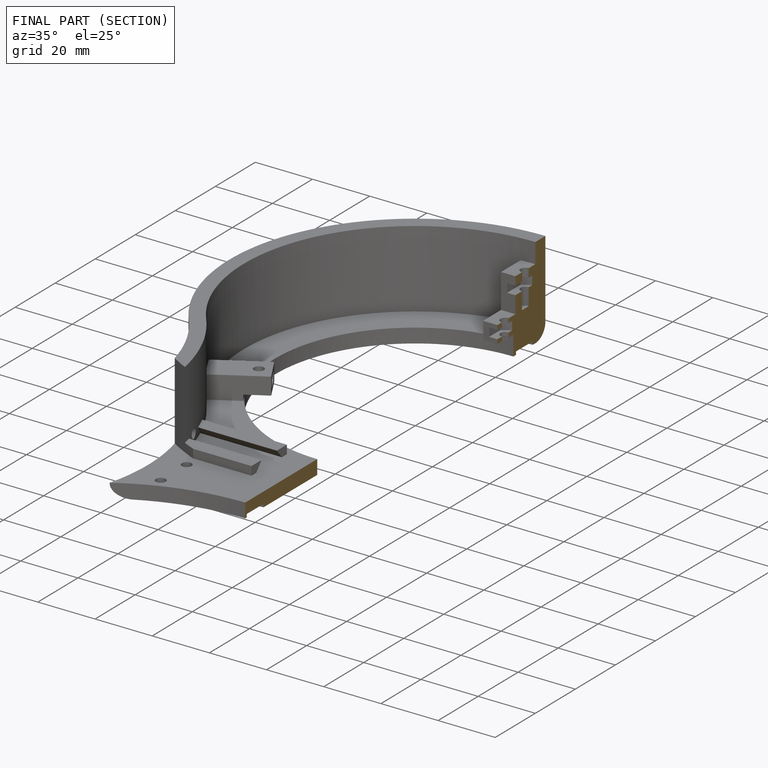
[diagram: finished part — half-section view (interior)]
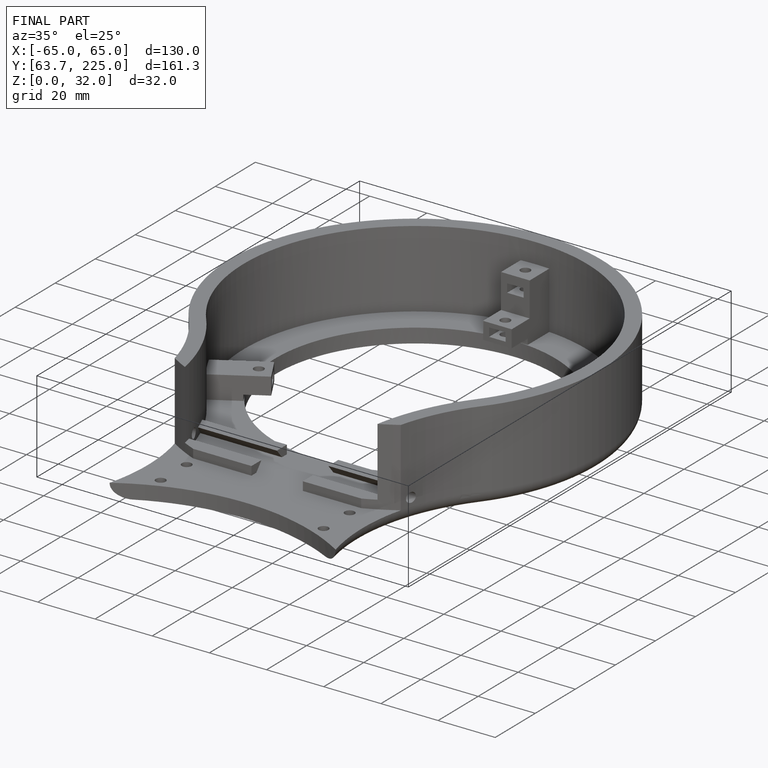
[diagram: finished part — iso view with bounding-box wireframe]
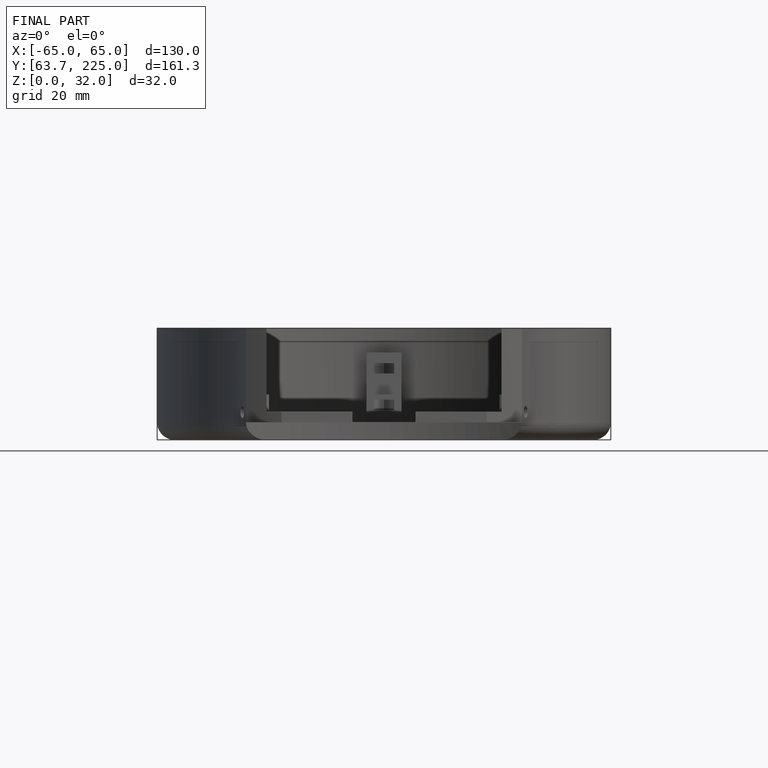
[diagram: finished part — front view with bounding-box wireframe]
